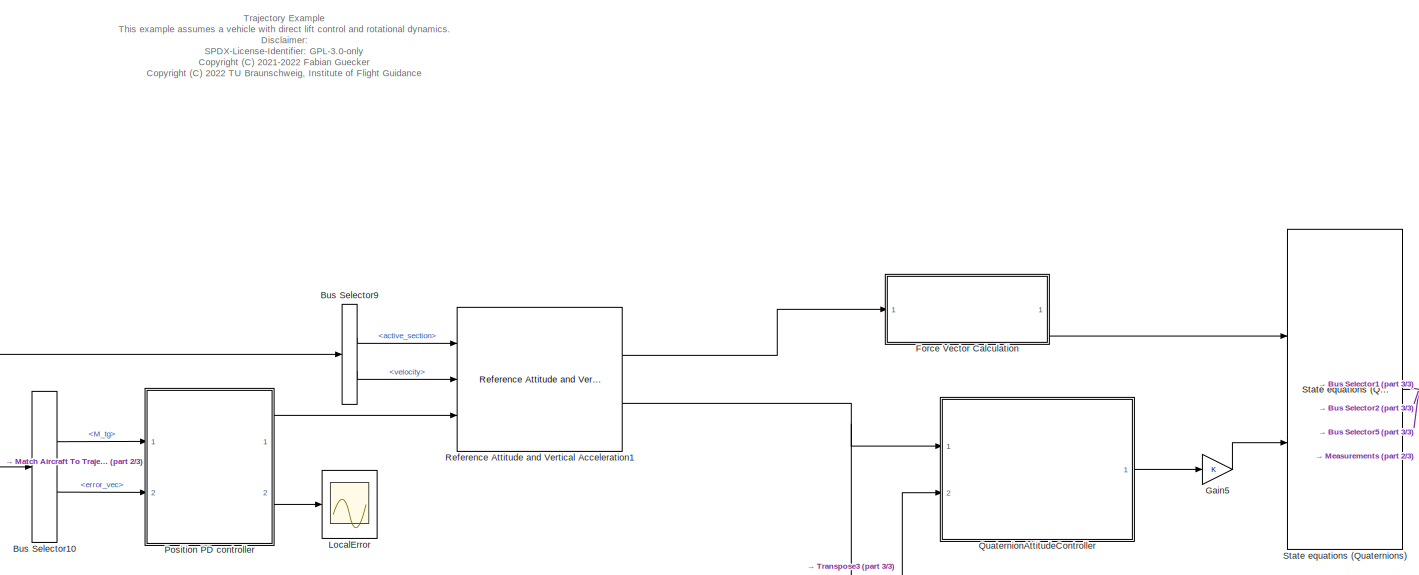
[diagram: root canvas - part 1/3, top center region]
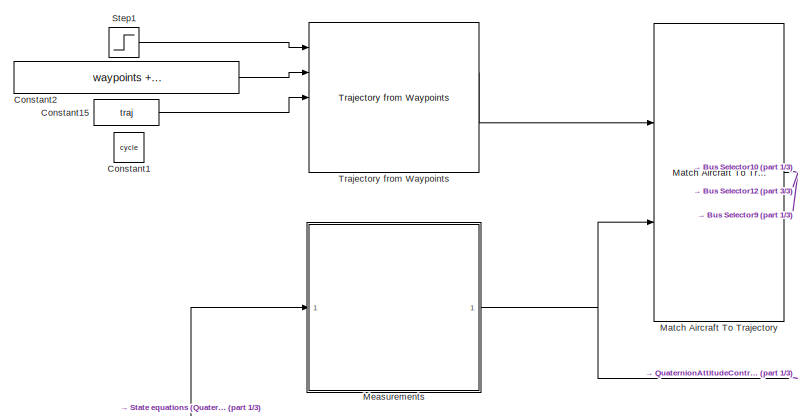
[diagram: root canvas - part 2/3, middle left region]
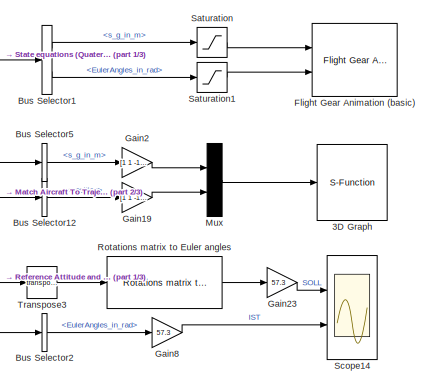
[diagram: root canvas - part 3/3, middle right region]
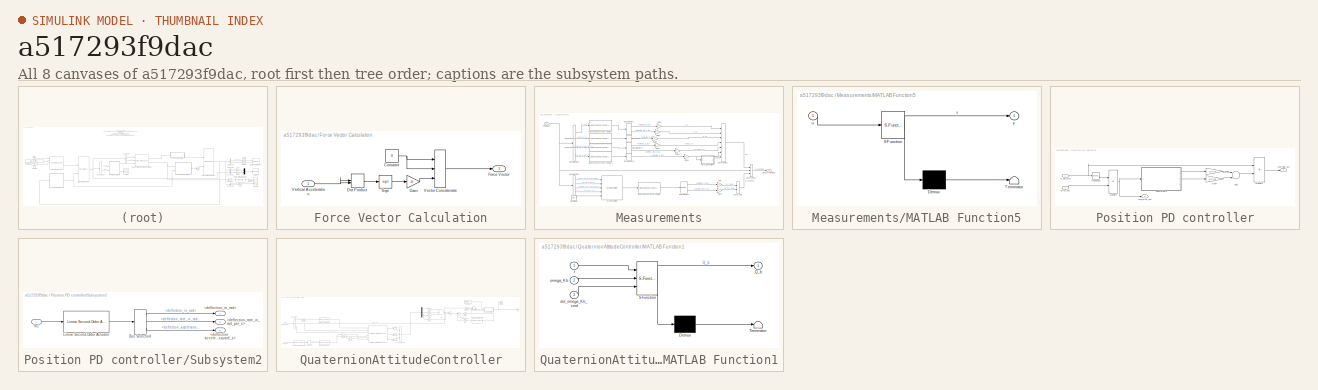
[diagram: thumbnail index - all 8 canvases of the model, root first then tree order]
MODEL slx_a517293f9dac
KIND model
CONFIG AbsTol = auto
CONFIG EnableMultiTasking = off
CONFIG FixedStep = 0.001
CONFIG MaxStep = auto
CONFIG MinStep = auto
CONFIG RelTol = 1e-3
CONFIG SampleTimeConstraint = Unconstrained
CONFIG Solver = ode2
CONFIG SolverName = ode2
CONFIG StartTime = 0.0
CONFIG StopTime = 60
BLOCK [S-Function] 3D Graph
  CopyFcn = if exist('sfun3d','file'), sfun3d([],[],[],'CopyBlock'); end
  DeleteFcn = if exist('sfun3d','file'), sfun3d([],[],[],'DeleteBlock'); end
  EnableBusSupport = off
  FunctionName = sfun3d
  LoadFcn = if exist('sfun3d','file'), sfun3d([],[],[],'LoadBlock'); end
  NameChangeFcn = if exist('sfun3d','file'), sfun3d([],[],[],'NameChange'); end
  Parameters = ax,T,np,cp,gd,ls,mk,mx,hd,tb
  Ports = [1]
  SFcnIsStateOwnerBlock = off
  SFunctionDeploymentMode = off
BLOCK [BusSelector] Bus Selector1
  OutputAsBus = off
  OutputSignals = s_g_in_m,EulerAngles_in_rad
  Ports = [1, 2]
BLOCK [BusSelector] Bus Selector10
  OutputAsBus = off
  OutputSignals = M_tg,error_vec
  Ports = [1, 2]
BLOCK [BusSelector] Bus Selector12
  OutputAsBus = off
  OutputSignals = position
  Ports = [1, 1]
BLOCK [BusSelector] Bus Selector2
  OutputAsBus = off
  OutputSignals = EulerAngles_in_rad
  Ports = [1, 1]
BLOCK [BusSelector] Bus Selector5
  OutputAsBus = off
  OutputSignals = s_g_in_m
  Ports = [1, 1]
BLOCK [BusSelector] Bus Selector9
  OutputAsBus = off
  OutputSignals = active_section,velocity
  Ports = [1, 2]
BLOCK [Constant] Constant1
  OutDataTypeStr = boolean
  Value = cycle
BLOCK [Constant] Constant15
  OutDataTypeStr = Bus: trajectoryBus
  Value = traj
BLOCK [Constant] Constant2
  Value = waypoints + [0 0 0]'
BLOCK [Reference] Flight Gear Animation (basic)  REF=flightgear_visualization_lib/Flight Gear Animation (basic)  (lib defined in slx_722f04e3a3fc)
  Ports = [2]
  SourceBlock = flightgear_visualization_lib/Flight Gear Animation (basic)
  SourceProductName = LADAC
BLOCK [SubSystem] Force Vector Calculation
  Ports = [1, 1]
  RequestExecContextInheritance = off
BLOCK [Constant] Force Vector Calculation/Constant
  Value = 0
BLOCK [DotProduct] Force Vector Calculation/Dot Product
  OutDataTypeStr = Inherit: Inherit via internal rule
BLOCK [Outport] Force Vector Calculation/Force Vector
  IconDisplay = Port number
BLOCK [Gain] Force Vector Calculation/Gain
  Gain = -m
  OutDataTypeStr = Inherit: Inherit via internal rule
  ParamDataTypeStr = Inherit: Inherit via internal rule
  SaturateOnIntegerOverflow = off
BLOCK [Sqrt] Force Vector Calculation/Sqrt
BLOCK [Concatenate] Force Vector Calculation/Vector Concatenate
  NumInputs = 3
  Ports = [3, 1]
BLOCK [Inport] Force Vector Calculation/Vertical Acceleration
  IconDisplay = Port number
BLOCK [Gain] Gain19
  Gain = [1 1 -1]'
  OutDataTypeStr = Inherit: Inherit via internal rule
  ParamDataTypeStr = Inherit: Inherit via internal rule
  SaturateOnIntegerOverflow = off
BLOCK [Gain] Gain2
  Gain = [1 1 -1]'
  OutDataTypeStr = Inherit: Inherit via internal rule
  ParamDataTypeStr = Inherit: Inherit via internal rule
  SaturateOnIntegerOverflow = off
BLOCK [Gain] Gain23
  Gain = 57.3
  OutDataTypeStr = Inherit: Inherit via internal rule
  ParamDataTypeStr = Inherit: Inherit via internal rule
  SaturateOnIntegerOverflow = off
BLOCK [Gain] Gain5
  OutDataTypeStr = Inherit: Inherit via internal rule
  ParamDataTypeStr = Inherit: Inherit via internal rule
  SaturateOnIntegerOverflow = off
BLOCK [Gain] Gain8
  Gain = 57.3
  OutDataTypeStr = Inherit: Inherit via internal rule
  ParamDataTypeStr = Inherit: Inherit via internal rule
  SaturateOnIntegerOverflow = off
BLOCK [Scope] LocalError
  Floating = off
  NumInputPorts = 1
  Ports = [1]
  ScopeSpecificationString = Simulink.scopes.TimeScopeBlockCfg('CurrentConfiguration', extmgr.ConfigurationSet(extmgr.Configuration('Core','General UI',true),extmgr.Configuration('Core','Source UI',true),extmgr.Configuration('Sources','WiredSimulink',true,'DataLoggingVariableName','ScopeData3'),extmgr.Configuration('Visuals','Time Domain',true,'SerializedDisplays',{struct('MinYLimReal','-0.20469','MaxYLimReal','0.25157','YLab...<+1515ch>
BLOCK [Reference] Match Aircraft To Trajectory  REF=traj_lib/Match Aircraft To Trajectory  (lib defined in slx_5b1c91620ded)
  Ports = [2, 1]
  SourceBlock = traj_lib/Match Aircraft To Trajectory
  SourceProductName = LADAC
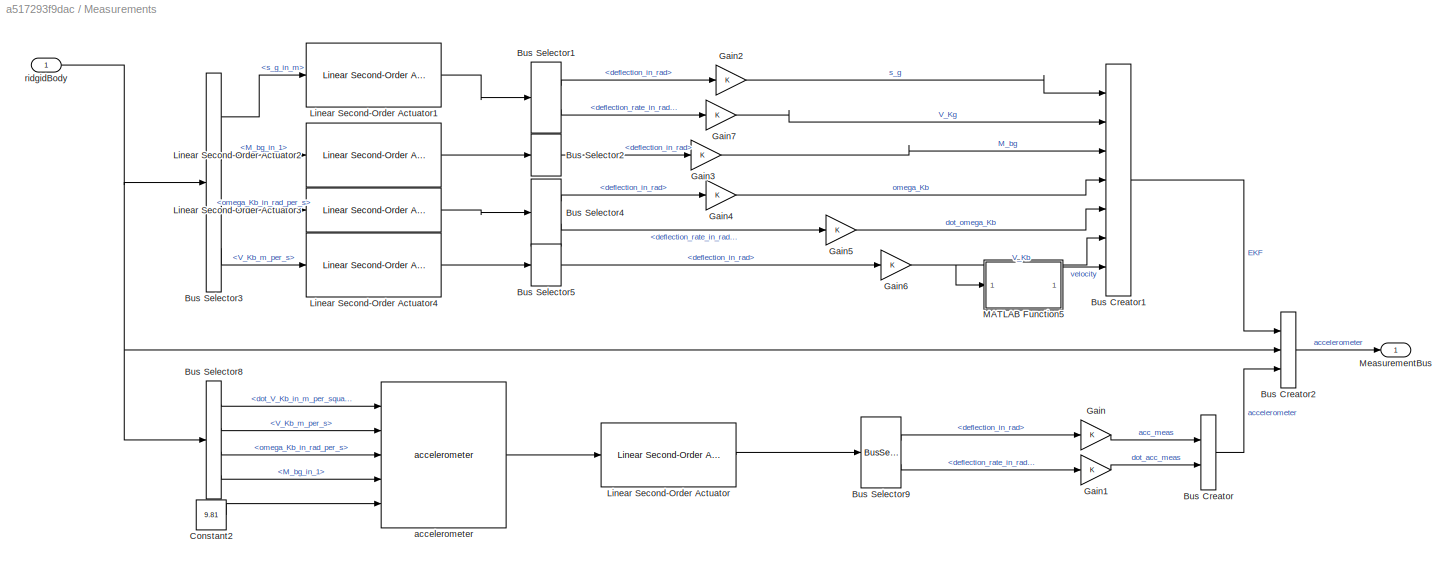
BLOCK [SubSystem] Measurements
  Ports = [1, 1]
  RequestExecContextInheritance = off
BLOCK [BusCreator] Measurements/Bus Creator
  DisplayOption = bar
  InheritFromInputs = on
  Inputs = 2
  Ports = [2, 1]
BLOCK [BusCreator] Measurements/Bus Creator1
  DisplayOption = bar
  InheritFromInputs = on
  Inputs = 7
  Ports = [7, 1]
BLOCK [BusCreator] Measurements/Bus Creator2
  DisplayOption = bar
  InheritFromInputs = on
  Inputs = 3
  Ports = [3, 1]
BLOCK [BusSelector] Measurements/Bus Selector1
  OutputAsBus = off
  OutputSignals = deflection_in_rad,deflection_rate_in_rad_per_s
  Ports = [1, 2]
BLOCK [BusSelector] Measurements/Bus Selector2
  OutputAsBus = off
  OutputSignals = deflection_in_rad
  Ports = [1, 1]
BLOCK [BusSelector] Measurements/Bus Selector3
  OutputAsBus = off
  OutputSignals = s_g_in_m,M_bg_in_1,omega_Kb_in_rad_per_s,V_Kb_m_per_s
  Ports = [1, 4]
BLOCK [BusSelector] Measurements/Bus Selector4
  OutputAsBus = off
  OutputSignals = deflection_in_rad,deflection_rate_in_rad_per_s
  Ports = [1, 2]
BLOCK [BusSelector] Measurements/Bus Selector5
  OutputAsBus = off
  OutputSignals = deflection_in_rad
  Ports = [1, 1]
BLOCK [BusSelector] Measurements/Bus Selector8
  OutputAsBus = off
  OutputSignals = dot_V_Kb_in_m_per_square_s,V_Kb_m_per_s,omega_Kb_in_rad_per_s,M_bg_in_1
  Ports = [1, 4]
BLOCK [BusSelector] Measurements/Bus Selector9
  OutputAsBus = off
  OutputSignals = deflection_in_rad,deflection_rate_in_rad_per_s
  Ports = [1, 2]
BLOCK [Constant] Measurements/Constant2
  Value = 9.81
BLOCK [Gain] Measurements/Gain
  OutDataTypeStr = Inherit: Inherit via internal rule
  ParamDataTypeStr = Inherit: Inherit via internal rule
  SaturateOnIntegerOverflow = off
BLOCK [Gain] Measurements/Gain1
  OutDataTypeStr = Inherit: Inherit via internal rule
  ParamDataTypeStr = Inherit: Inherit via internal rule
  SaturateOnIntegerOverflow = off
BLOCK [Gain] Measurements/Gain2
  OutDataTypeStr = Inherit: Inherit via internal rule
  ParamDataTypeStr = Inherit: Inherit via internal rule
  SaturateOnIntegerOverflow = off
BLOCK [Gain] Measurements/Gain3
  OutDataTypeStr = Inherit: Inherit via internal rule
  ParamDataTypeStr = Inherit: Inherit via internal rule
  SaturateOnIntegerOverflow = off
BLOCK [Gain] Measurements/Gain4
  OutDataTypeStr = Inherit: Inherit via internal rule
  ParamDataTypeStr = Inherit: Inherit via internal rule
  SaturateOnIntegerOverflow = off
BLOCK [Gain] Measurements/Gain5
  OutDataTypeStr = Inherit: Inherit via internal rule
  ParamDataTypeStr = Inherit: Inherit via internal rule
  SaturateOnIntegerOverflow = off
BLOCK [Gain] Measurements/Gain6
  OutDataTypeStr = Inherit: Inherit via internal rule
  ParamDataTypeStr = Inherit: Inherit via internal rule
  SaturateOnIntegerOverflow = off
BLOCK [Gain] Measurements/Gain7
  OutDataTypeStr = Inherit: Inherit via internal rule
  ParamDataTypeStr = Inherit: Inherit via internal rule
  SaturateOnIntegerOverflow = off
BLOCK [Reference] Measurements/Linear Second-Order Actuator  REF=actuators_lib/Linear Second-Order Actuator  (lib defined in slx_c2decc952d1f)
  Ports = [1, 1]
  SourceBlock = actuators_lib/Linear Second-Order Actuator
  SourceProductName = LADAC
BLOCK [Reference] Measurements/Linear Second-Order Actuator1  REF=actuators_lib/Linear Second-Order Actuator  (lib defined in slx_c2decc952d1f)
  Ports = [1, 1]
  SourceBlock = actuators_lib/Linear Second-Order Actuator
  SourceProductName = LADAC
BLOCK [Reference] Measurements/Linear Second-Order Actuator2  REF=actuators_lib/Linear Second-Order Actuator  (lib defined in slx_c2decc952d1f)
  Ports = [1, 1]
  SourceBlock = actuators_lib/Linear Second-Order Actuator
  SourceProductName = LADAC
BLOCK [Reference] Measurements/Linear Second-Order Actuator3  REF=actuators_lib/Linear Second-Order Actuator  (lib defined in slx_c2decc952d1f)
  Ports = [1, 1]
  SourceBlock = actuators_lib/Linear Second-Order Actuator
  SourceProductName = LADAC
BLOCK [Reference] Measurements/Linear Second-Order Actuator4  REF=actuators_lib/Linear Second-Order Actuator  (lib defined in slx_c2decc952d1f)
  Ports = [1, 1]
  SourceBlock = actuators_lib/Linear Second-Order Actuator
  SourceProductName = LADAC
BLOCK [SubSystem] Measurements/MATLAB Function5
  ErrorFcn = Stateflow.Translate.translate
  PermitHierarchicalResolution = ExplicitOnly
  Ports = [1, 1]
  RequestExecContextInheritance = off
  SFBlockType = MATLAB Function
  TreatAsAtomicUnit = on
BLOCK [Demux] Measurements/MATLAB Function5/ Demux 
  Outputs = 1
  Ports = [1, 1]
BLOCK [S-Function] Measurements/MATLAB Function5/ SFunction 
  EnableBusSupport = on
  FunctionName = sf_sfun
  PortCounts = [1 2]
  Ports = [1, 2]
  SFcnIsStateOwnerBlock = off
  SFunctionDeploymentMode = off
  Tag = Stateflow S-Function traj_rigid_body_example 15
BLOCK [Terminator] Measurements/MATLAB Function5/ Terminator 
BLOCK [Inport] Measurements/MATLAB Function5/u
  IconDisplay = Port number
BLOCK [Outport] Measurements/MATLAB Function5/y
  IconDisplay = Port number
BLOCK [Outport] Measurements/MeasurementBus
  IconDisplay = Port number
BLOCK [Reference] Measurements/accelerometer  REF=sensors_lib/accelerometer  (lib defined in mdl_052e9be48c24, mdl_88e42053cf8c, +1 more)
  Ports = [5, 1]
  SourceBlock = sensors_lib/accelerometer
  SourceProductName = LADAC
  SourceType = SubSystem
BLOCK [Inport] Measurements/ridgidBody
  IconDisplay = Port number
BLOCK [Mux] Mux
  DisplayOption = bar
  Inputs = 2
  Ports = [2, 1]
BLOCK [SubSystem] Position PD controller
  Ports = [2, 2]
  RequestExecContextInheritance = off
BLOCK [Sum] Position PD controller/Add1
  InputSameDT = off
  OutDataTypeStr = Inherit: Inherit via internal rule
  Ports = [2, 1]
  SaturateOnIntegerOverflow = off
BLOCK [Gain] Position PD controller/Gain
  Gain = [0 4 4]
  OutDataTypeStr = Inherit: Inherit via internal rule
  ParamDataTypeStr = Inherit: Inherit via internal rule
  SaturateOnIntegerOverflow = off
BLOCK [Gain] Position PD controller/Gain4
  Gain = [0 2 2]
  OutDataTypeStr = Inherit: Inherit via internal rule
  ParamDataTypeStr = Inherit: Inherit via internal rule
  SaturateOnIntegerOverflow = off
BLOCK [Inport] Position PD controller/M_bg_cmd
  IconDisplay = Port number
BLOCK [Product] Position PD controller/Multiply2
  InputSameDT = off
  Multiplication = Matrix(*)
  OutDataTypeStr = Inherit: Inherit via internal rule
  Ports = [2, 1]
  RndMeth = Floor
  SaturateOnIntegerOverflow = off
BLOCK [Product] Position PD controller/Multiply3
  InputSameDT = off
  Multiplication = Matrix(*)
  OutDataTypeStr = Inherit: Inherit via internal rule
  Ports = [2, 1]
  RndMeth = Floor
  SaturateOnIntegerOverflow = off
BLOCK [SubSystem] Position PD controller/Subsystem2
  Ports = [1, 3]
  RequestExecContextInheritance = off
BLOCK [Outport] Position PD controller/Subsystem2/<deflection_acceleration_in_rad_per_square_s>
  IconDisplay = Port number
  Port = 3
BLOCK [Outport] Position PD controller/Subsystem2/<deflection_in_rad>
  IconDisplay = Port number
BLOCK [Outport] Position PD controller/Subsystem2/<deflection_rate_in_rad_per_s>
  IconDisplay = Port number
  Port = 2
BLOCK [BusSelector] Position PD controller/Subsystem2/Bus Selector4
  OutputAsBus = off
  OutputSignals = deflection_in_rad,deflection_rate_in_rad_per_s,deflection_acceleration_in_rad_per_square_s
  Ports = [1, 3]
BLOCK [Inport] Position PD controller/Subsystem2/In1
  IconDisplay = Port number
BLOCK [Reference] Position PD controller/Subsystem2/Linear Second-Order Actuator  REF=actuators_lib/Linear Second-Order Actuator  (lib defined in slx_c2decc952d1f)
  Ports = [1, 1]
  SourceBlock = actuators_lib/Linear Second-Order Actuator
  SourceProductName = LADAC
BLOCK [Math] Position PD controller/Transpose
  Operator = transpose
  Ports = [1, 1]
BLOCK [Outport] Position PD controller/controller_acc
  IconDisplay = Port number
BLOCK [Inport] Position PD controller/error_vec
  IconDisplay = Port number
  Port = 2
BLOCK [Outport] Position PD controller/local_error_vec
  IconDisplay = Port number
  Port = 2
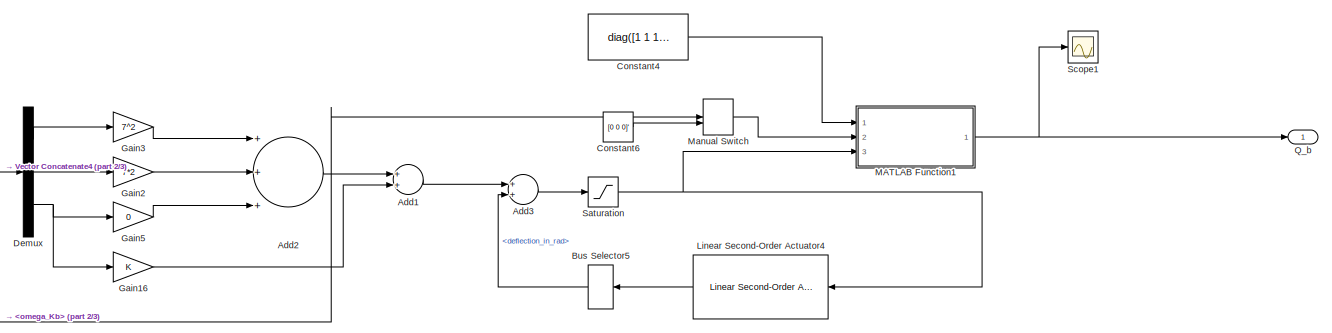
[diagram: QuaternionAttitudeController - part 1/3, top right region]
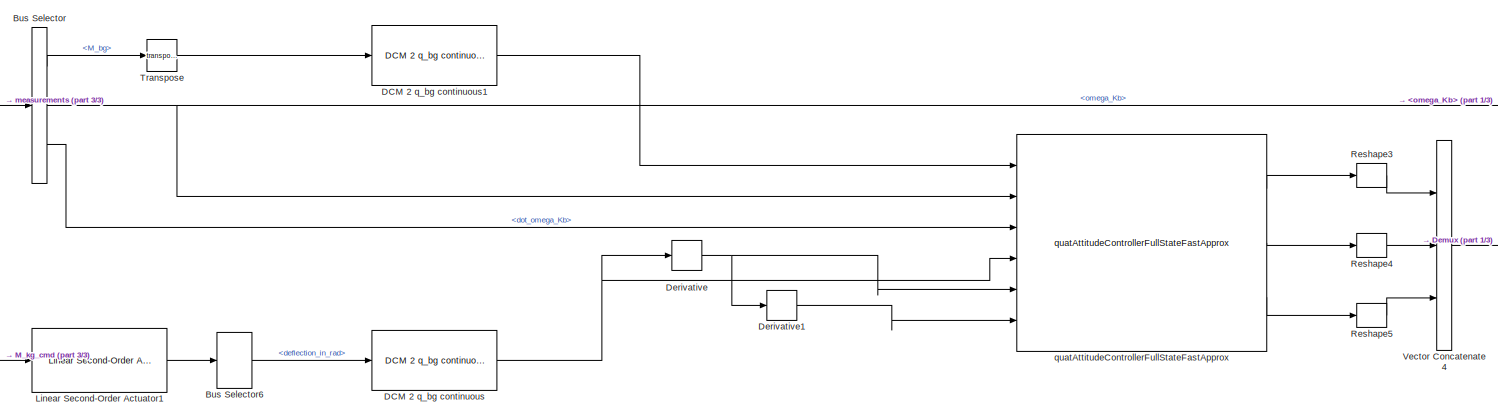
[diagram: QuaternionAttitudeController - part 2/3, bottom left region]
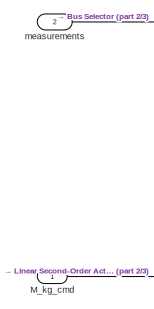
[diagram: QuaternionAttitudeController - part 3/3, bottom left region]
BLOCK [SubSystem] QuaternionAttitudeController
  Ports = [2, 1]
  RequestExecContextInheritance = off
BLOCK [Sum] QuaternionAttitudeController/Add1
  InputSameDT = off
  OutDataTypeStr = Inherit: Inherit via internal rule
  Ports = [2, 1]
  SaturateOnIntegerOverflow = off
BLOCK [Sum] QuaternionAttitudeController/Add2
  InputSameDT = off
  Inputs = +++
  OutDataTypeStr = Inherit: Inherit via internal rule
  Ports = [3, 1]
  SaturateOnIntegerOverflow = off
BLOCK [Sum] QuaternionAttitudeController/Add3
  InputSameDT = off
  OutDataTypeStr = Inherit: Inherit via internal rule
  Ports = [2, 1]
  SaturateOnIntegerOverflow = off
BLOCK [BusSelector] QuaternionAttitudeController/Bus Selector
  OutputAsBus = off
  OutputSignals = EKF.M_bg,EKF.omega_Kb,EKF.dot_omega_Kb
  Ports = [1, 3]
BLOCK [BusSelector] QuaternionAttitudeController/Bus Selector5
  OutputAsBus = off
  OutputSignals = deflection_in_rad
  Ports = [1, 1]
BLOCK [BusSelector] QuaternionAttitudeController/Bus Selector6
  OutputAsBus = off
  OutputSignals = deflection_in_rad
  Ports = [1, 1]
BLOCK [Constant] QuaternionAttitudeController/Constant4
  Value = diag([1 1 1])
  VectorParams1D = off
BLOCK [Constant] QuaternionAttitudeController/Constant6
  Value = [0 0 0]'
  VectorParams1D = off
BLOCK [Reference] QuaternionAttitudeController/DCM 2 q_bg continuous  REF=axes_transformation_lib/DCM 2 q_bg continuous  (lib defined in slx_69e2413c78c0)
  Ports = [1, 1]
  SourceBlock = axes_transformation_lib/DCM 2 q_bg continuous
  SourceProductName = LADAC
BLOCK [Reference] QuaternionAttitudeController/DCM 2 q_bg continuous1  REF=axes_transformation_lib/DCM 2 q_bg continuous  (lib defined in slx_69e2413c78c0)
  Ports = [1, 1]
  SourceBlock = axes_transformation_lib/DCM 2 q_bg continuous
  SourceProductName = LADAC
BLOCK [Demux] QuaternionAttitudeController/Demux
  DisplayOption = bar
  Outputs = 3
  Ports = [1, 3]
BLOCK [Derivative] QuaternionAttitudeController/Derivative
BLOCK [Derivative] QuaternionAttitudeController/Derivative1
BLOCK [Gain] QuaternionAttitudeController/Gain16
  OutDataTypeStr = Inherit: Inherit via internal rule
  ParamDataTypeStr = Inherit: Inherit via internal rule
  SaturateOnIntegerOverflow = off
BLOCK [Gain] QuaternionAttitudeController/Gain2
  Gain = 7*2
  OutDataTypeStr = Inherit: Inherit via internal rule
  ParamDataTypeStr = Inherit: Inherit via internal rule
  SaturateOnIntegerOverflow = off
BLOCK [Gain] QuaternionAttitudeController/Gain3
  Gain = 7^2
  OutDataTypeStr = Inherit: Inherit via internal rule
  ParamDataTypeStr = Inherit: Inherit via internal rule
  SaturateOnIntegerOverflow = off
BLOCK [Gain] QuaternionAttitudeController/Gain5
  Gain = 0
  OutDataTypeStr = Inherit: Inherit via internal rule
  ParamDataTypeStr = Inherit: Inherit via internal rule
  SaturateOnIntegerOverflow = off
BLOCK [Reference] QuaternionAttitudeController/Linear Second-Order Actuator1  REF=actuators_lib/Linear Second-Order Actuator  (lib defined in slx_c2decc952d1f)
  Ports = [1, 1]
  SourceBlock = actuators_lib/Linear Second-Order Actuator
  SourceProductName = LADAC
BLOCK [Reference] QuaternionAttitudeController/Linear Second-Order Actuator4  REF=actuators_lib/Linear Second-Order Actuator  (lib defined in slx_c2decc952d1f)
  Ports = [1, 1]
  SourceBlock = actuators_lib/Linear Second-Order Actuator
  SourceProductName = LADAC
BLOCK [SubSystem] QuaternionAttitudeController/MATLAB Function1
  ErrorFcn = Stateflow.Translate.translate
  PermitHierarchicalResolution = ExplicitOnly
  Ports = [3, 1]
  RequestExecContextInheritance = off
  SFBlockType = MATLAB Function
  TreatAsAtomicUnit = on
BLOCK [Demux] QuaternionAttitudeController/MATLAB Function1/ Demux 
  Outputs = 1
  Ports = [1, 1]
BLOCK [S-Function] QuaternionAttitudeController/MATLAB Function1/ SFunction 
  EnableBusSupport = on
  FunctionName = sf_sfun
  PortCounts = [3 2]
  Ports = [3, 2]
  SFcnIsStateOwnerBlock = off
  SFunctionDeploymentMode = off
  Tag = Stateflow S-Function traj_rigid_body_example 34
BLOCK [Terminator] QuaternionAttitudeController/MATLAB Function1/ Terminator 
BLOCK [Inport] QuaternionAttitudeController/MATLAB Function1/I
  IconDisplay = Port number
BLOCK [Outport] QuaternionAttitudeController/MATLAB Function1/Q_b
  IconDisplay = Port number
BLOCK [Inport] QuaternionAttitudeController/MATLAB Function1/dot_omega_Kb_cmd
  IconDisplay = Port number
  Port = 3
BLOCK [Inport] QuaternionAttitudeController/MATLAB Function1/omega_Kb
  IconDisplay = Port number
  Port = 2
BLOCK [Inport] QuaternionAttitudeController/M_kg_cmd
  IconDisplay = Port number
BLOCK [ManualSwitch] QuaternionAttitudeController/Manual Switch
BLOCK [Outport] QuaternionAttitudeController/Q_b
  IconDisplay = Port number
BLOCK [Reshape] QuaternionAttitudeController/Reshape3
  OutputDimensionality = Column vector (2-D)
  Ports = [1, 1]
BLOCK [Reshape] QuaternionAttitudeController/Reshape4
  OutputDimensionality = Column vector (2-D)
  Ports = [1, 1]
BLOCK [Reshape] QuaternionAttitudeController/Reshape5
  OutputDimensionality = Column vector (2-D)
  Ports = [1, 1]
BLOCK [Saturate] QuaternionAttitudeController/Saturation
  InputPortMap = u0
  LowerLimit = -10
  Ports = [1, 1]
  UpperLimit = 10
BLOCK [Scope] QuaternionAttitudeController/Scope1
  Floating = off
  NumInputPorts = 1
  Ports = [1]
  ScopeSpecificationString = Simulink.scopes.TimeScopeBlockCfg('CurrentConfiguration', extmgr.ConfigurationSet(extmgr.Configuration('Core','General UI',true),extmgr.Configuration('Core','Source UI',true),extmgr.Configuration('Sources','WiredSimulink',true,'DataLoggingVariableName','ScopeData1'),extmgr.Configuration('Visuals','Time Domain',true,'SerializedDisplays',{struct('MinYLimReal','-12.5','MaxYLimReal','10.76376','YLabel...<+1462ch>
BLOCK [Math] QuaternionAttitudeController/Transpose
  Operator = transpose
  Ports = [1, 1]
BLOCK [Concatenate] QuaternionAttitudeController/Vector Concatenate4
  NumInputs = 3
  Ports = [3, 1]
BLOCK [Inport] QuaternionAttitudeController/measurements
  IconDisplay = Port number
  Port = 2
BLOCK [Reference] QuaternionAttitudeController/quatAttitudeControllerFullStateFastApprox  REF=quatAttitudeController_lib/quatAttitudeControllerFullStateFastApprox
  Ports = [6, 3]
  SourceBlock = quatAttitudeController_lib/quatAttitudeControllerFullStateFastApprox
  SourceProductName = LADAC
  SourceType = SubSystem
BLOCK [Reference] Reference Attitude and Vertical Acceleration1  REF=traj_lib/Reference Attitude and Vertical Acceleration  (lib defined in slx_5b1c91620ded)
  Ports = [3, 2]
  SourceBlock = traj_lib/Reference Attitude and Vertical Acceleration
  SourceProductName = LADAC
BLOCK [Reference] Rotations matrix to Euler angles  REF=axes_transformation_lib/Rotations matrix to Euler angles  (lib defined in slx_69e2413c78c0)
  Ports = [1, 1]
  SourceBlock = axes_transformation_lib/Rotations matrix to Euler angles
  SourceProductName = LADAC
  SourceType = SubSystem
BLOCK [Saturate] Saturation
  InputPortMap = u0
  LowerLimit = -5000
  Ports = [1, 1]
  UpperLimit = 5000
BLOCK [Saturate] Saturation1
  InputPortMap = u0
  LowerLimit = -100*pi
  Ports = [1, 1]
  UpperLimit = 100*pi
BLOCK [Scope] Scope14
  Floating = off
  NumInputPorts = 2
  Ports = [2]
  ScopeSpecificationString = Simulink.scopes.TimeScopeBlockCfg('CurrentConfiguration', extmgr.ConfigurationSet(extmgr.Configuration('Core','General UI',true),extmgr.Configuration('Core','Source UI',true),extmgr.Configuration('Sources','WiredSimulink',true,'DataLoggingVariableName','ScopeData2'),extmgr.Configuration('Visuals','Time Domain',true,'SerializedDisplays',{struct('MinYLimReal','-34.28818','MaxYLimReal','124.23051','Y...<+1695ch>
BLOCK [Reference] State equations (Quaternions)  REF=rigidBody_lib/State equations
(Quaternions)
  Ports = [2, 1]
  SourceBlock = rigidBody_lib/State equations\n(Quaternions)
  SourceProductName = LADAC
BLOCK [Step] Step1
  SampleTime = 0
  Time = 0
BLOCK [Reference] Trajectory from Waypoints  REF=traj_lib/Trajectory from Waypoints  (lib defined in slx_5b1c91620ded)
  Ports = [5, 2]
  SourceBlock = traj_lib/Trajectory from Waypoints
  SourceProductName = LADAC
BLOCK [Math] Transpose3
  Operator = transpose
  Ports = [1, 1]
ANNOTATION (root): Trajectory Example This example assumes a vehicle with direct lift control and rotational dynamics. Disclaimer: SPDX-License-Identifier: GPL-3.0-only <copyright redacted>
LINE Bus Selector10:1 -> Position PD controller:1
LINE Bus Selector10:2 -> Position PD controller:2
LINE Bus Selector12:1 -> Gain19:1
LINE Bus Selector1:1 -> Saturation:1
LINE Bus Selector1:2 -> Saturation1:1
LINE Bus Selector2:1 -> Gain8:1
LINE Bus Selector5:1 -> Gain2:1
LINE Bus Selector9:1 -> Reference Attitude and Vertical Acceleration1:1
LINE Bus Selector9:2 -> Reference Attitude and Vertical Acceleration1:2
LINE Constant15:1 -> Trajectory from Waypoints:3
LINE Constant2:1 -> Trajectory from Waypoints:2
NET Force Vector Calculation/Constant:1 -> Force Vector Calculation/Vector Concatenate:1, Force Vector Calculation/Vector Concatenate:2
LINE Force Vector Calculation/Dot Product:1 -> Force Vector Calculation/Sqrt:1
LINE Force Vector Calculation/Gain:1 -> Force Vector Calculation/Vector Concatenate:3
LINE Force Vector Calculation/Sqrt:1 -> Force Vector Calculation/Gain:1
LINE Force Vector Calculation/Vector Concatenate:1 -> Force Vector Calculation/Force Vector:1
NET Force Vector Calculation/Vertical Acceleration:1 -> Force Vector Calculation/Dot Product:1, Force Vector Calculation/Dot Product:2
LINE Force Vector Calculation:1 -> State equations (Quaternions):1
LINE Gain19:1 -> Mux:2
LINE Gain23:1 -> Scope14:1
LINE Gain2:1 -> Mux:1
LINE Gain5:1 -> State equations (Quaternions):2
LINE Gain8:1 -> Scope14:2
NET Match Aircraft To Trajectory:1 -> Bus Selector10:1, Bus Selector12:1, Bus Selector9:1
LINE Measurements/Bus Creator1:1 -> Measurements/Bus Creator2:1
LINE Measurements/Bus Creator2:1 -> Measurements/MeasurementBus:1
LINE Measurements/Bus Creator:1 -> Measurements/Bus Creator2:3
LINE Measurements/Bus Selector1:1 -> Measurements/Gain2:1
LINE Measurements/Bus Selector1:2 -> Measurements/Gain7:1
LINE Measurements/Bus Selector2:1 -> Measurements/Gain3:1
LINE Measurements/Bus Selector3:1 -> Measurements/Linear Second-Order Actuator1:1
LINE Measurements/Bus Selector3:2 -> Measurements/Linear Second-Order Actuator2:1
LINE Measurements/Bus Selector3:3 -> Measurements/Linear Second-Order Actuator3:1
LINE Measurements/Bus Selector3:4 -> Measurements/Linear Second-Order Actuator4:1
LINE Measurements/Bus Selector4:1 -> Measurements/Gain4:1
LINE Measurements/Bus Selector4:2 -> Measurements/Gain5:1
LINE Measurements/Bus Selector5:1 -> Measurements/Gain6:1
LINE Measurements/Bus Selector8:1 -> Measurements/accelerometer:1
LINE Measurements/Bus Selector8:2 -> Measurements/accelerometer:2
LINE Measurements/Bus Selector8:3 -> Measurements/accelerometer:3
LINE Measurements/Bus Selector8:4 -> Measurements/accelerometer:4
LINE Measurements/Bus Selector9:1 -> Measurements/Gain:1
LINE Measurements/Bus Selector9:2 -> Measurements/Gain1:1
LINE Measurements/Constant2:1 -> Measurements/accelerometer:5
LINE Measurements/Gain1:1 -> Measurements/Bus Creator:2
LINE Measurements/Gain2:1 -> Measurements/Bus Creator1:1
LINE Measurements/Gain3:1 -> Measurements/Bus Creator1:3
LINE Measurements/Gain4:1 -> Measurements/Bus Creator1:4
LINE Measurements/Gain5:1 -> Measurements/Bus Creator1:5
NET Measurements/Gain6:1 -> Measurements/Bus Creator1:6, Measurements/MATLAB Function5:1
LINE Measurements/Gain7:1 -> Measurements/Bus Creator1:2
LINE Measurements/Gain:1 -> Measurements/Bus Creator:1
LINE Measurements/Linear Second-Order Actuator1:1 -> Measurements/Bus Selector1:1
LINE Measurements/Linear Second-Order Actuator2:1 -> Measurements/Bus Selector2:1
LINE Measurements/Linear Second-Order Actuator3:1 -> Measurements/Bus Selector4:1
LINE Measurements/Linear Second-Order Actuator4:1 -> Measurements/Bus Selector5:1
LINE Measurements/Linear Second-Order Actuator:1 -> Measurements/Bus Selector9:1
LINE Measurements/MATLAB Function5:1 -> Measurements/Bus Creator1:7
LINE Measurements/accelerometer:1 -> Measurements/Linear Second-Order Actuator:1
NET Measurements/ridgidBody:1 -> Measurements/Bus Creator2:2, Measurements/Bus Selector3:1, Measurements/Bus Selector8:1
NET Measurements:1 -> Match Aircraft To Trajectory:2, QuaternionAttitudeController:2
LINE Mux:1 -> 3D Graph:1
LINE Position PD controller/Add1:1 -> Position PD controller/Multiply3:2
LINE Position PD controller/Gain4:1 -> Position PD controller/Add1:2
LINE Position PD controller/Gain:1 -> Position PD controller/Add1:1
NET Position PD controller/M_bg_cmd:1 -> Position PD controller/Multiply3:1, Position PD controller/Transpose:1
NET Position PD controller/Multiply2:1 -> Position PD controller/Subsystem2:1, Position PD controller/local_error_vec:1
LINE Position PD controller/Multiply3:1 -> Position PD controller/controller_acc:1
LINE Position PD controller/Subsystem2/Bus Selector4:1 -> Position PD controller/Subsystem2/<deflection_in_rad>:1
LINE Position PD controller/Subsystem2/Bus Selector4:2 -> Position PD controller/Subsystem2/<deflection_rate_in_rad_per_s>:1
LINE Position PD controller/Subsystem2/Bus Selector4:3 -> Position PD controller/Subsystem2/<deflection_acceleration_in_rad_per_square_s>:1
LINE Position PD controller/Subsystem2/In1:1 -> Position PD controller/Subsystem2/Linear Second-Order Actuator:1
LINE Position PD controller/Subsystem2/Linear Second-Order Actuator:1 -> Position PD controller/Subsystem2/Bus Selector4:1
LINE Position PD controller/Subsystem2:1 -> Position PD controller/Gain:1
LINE Position PD controller/Subsystem2:2 -> Position PD controller/Gain4:1
LINE Position PD controller/Transpose:1 -> Position PD controller/Multiply2:1
LINE Position PD controller/error_vec:1 -> Position PD controller/Multiply2:2
LINE Position PD controller:1 -> Reference Attitude and Vertical Acceleration1:3
LINE Position PD controller:2 -> LocalError:1
LINE QuaternionAttitudeController/Add1:1 -> QuaternionAttitudeController/Add3:1
LINE QuaternionAttitudeController/Add2:1 -> QuaternionAttitudeController/Add1:1
LINE QuaternionAttitudeController/Add3:1 -> QuaternionAttitudeController/Saturation:1
LINE QuaternionAttitudeController/Bus Selector5:1 -> QuaternionAttitudeController/Add3:2
LINE QuaternionAttitudeController/Bus Selector6:1 -> QuaternionAttitudeController/DCM 2 q_bg continuous:1
LINE QuaternionAttitudeController/Bus Selector:1 -> QuaternionAttitudeController/Transpose:1
NET QuaternionAttitudeController/Bus Selector:2 -> QuaternionAttitudeController/Manual Switch:1, QuaternionAttitudeController/quatAttitudeControllerFullStateFastApprox:2
LINE QuaternionAttitudeController/Bus Selector:3 -> QuaternionAttitudeController/quatAttitudeControllerFullStateFastApprox:3
LINE QuaternionAttitudeController/Constant4:1 -> QuaternionAttitudeController/MATLAB Function1:1
LINE QuaternionAttitudeController/Constant6:1 -> QuaternionAttitudeController/Manual Switch:2
LINE QuaternionAttitudeController/DCM 2 q_bg continuous1:1 -> QuaternionAttitudeController/quatAttitudeControllerFullStateFastApprox:1
NET QuaternionAttitudeController/DCM 2 q_bg continuous:1 -> QuaternionAttitudeController/Derivative:1, QuaternionAttitudeController/quatAttitudeControllerFullStateFastApprox:4
LINE QuaternionAttitudeController/Demux:1 -> QuaternionAttitudeController/Gain3:1
LINE QuaternionAttitudeController/Demux:2 -> QuaternionAttitudeController/Gain2:1
NET QuaternionAttitudeController/Demux:3 -> QuaternionAttitudeController/Gain16:1, QuaternionAttitudeController/Gain5:1
LINE QuaternionAttitudeController/Derivative1:1 -> QuaternionAttitudeController/quatAttitudeControllerFullStateFastApprox:6
NET QuaternionAttitudeController/Derivative:1 -> QuaternionAttitudeController/Derivative1:1, QuaternionAttitudeController/quatAttitudeControllerFullStateFastApprox:5
LINE QuaternionAttitudeController/Gain16:1 -> QuaternionAttitudeController/Add1:2
LINE QuaternionAttitudeController/Gain2:1 -> QuaternionAttitudeController/Add2:2
LINE QuaternionAttitudeController/Gain3:1 -> QuaternionAttitudeController/Add2:1
LINE QuaternionAttitudeController/Gain5:1 -> QuaternionAttitudeController/Add2:3
LINE QuaternionAttitudeController/Linear Second-Order Actuator1:1 -> QuaternionAttitudeController/Bus Selector6:1
LINE QuaternionAttitudeController/Linear Second-Order Actuator4:1 -> QuaternionAttitudeController/Bus Selector5:1
NET QuaternionAttitudeController/MATLAB Function1:1 -> QuaternionAttitudeController/Q_b:1, QuaternionAttitudeController/Scope1:1
LINE QuaternionAttitudeController/M_kg_cmd:1 -> QuaternionAttitudeController/Linear Second-Order Actuator1:1
LINE QuaternionAttitudeController/Manual Switch:1 -> QuaternionAttitudeController/MATLAB Function1:2
LINE QuaternionAttitudeController/Reshape3:1 -> QuaternionAttitudeController/Vector Concatenate4:1
LINE QuaternionAttitudeController/Reshape4:1 -> QuaternionAttitudeController/Vector Concatenate4:2
LINE QuaternionAttitudeController/Reshape5:1 -> QuaternionAttitudeController/Vector Concatenate4:3
NET QuaternionAttitudeController/Saturation:1 -> QuaternionAttitudeController/Linear Second-Order Actuator4:1, QuaternionAttitudeController/MATLAB Function1:3
LINE QuaternionAttitudeController/Transpose:1 -> QuaternionAttitudeController/DCM 2 q_bg continuous1:1
LINE QuaternionAttitudeController/Vector Concatenate4:1 -> QuaternionAttitudeController/Demux:1
LINE QuaternionAttitudeController/measurements:1 -> QuaternionAttitudeController/Bus Selector:1
LINE QuaternionAttitudeController/quatAttitudeControllerFullStateFastApprox:1 -> QuaternionAttitudeController/Reshape3:1
LINE QuaternionAttitudeController/quatAttitudeControllerFullStateFastApprox:2 -> QuaternionAttitudeController/Reshape4:1
LINE QuaternionAttitudeController/quatAttitudeControllerFullStateFastApprox:3 -> QuaternionAttitudeController/Reshape5:1
LINE QuaternionAttitudeController:1 -> Gain5:1
LINE Reference Attitude and Vertical Acceleration1:1 -> Force Vector Calculation:1
NET Reference Attitude and Vertical Acceleration1:2 -> QuaternionAttitudeController:1, Transpose3:1
LINE Rotations matrix to Euler angles:1 -> Gain23:1
LINE Saturation1:1 -> Flight Gear Animation (basic):2
LINE Saturation:1 -> Flight Gear Animation (basic):1
NET State equations (Quaternions):1 -> Bus Selector1:1, Bus Selector2:1, Bus Selector5:1, Measurements:1
LINE Step1:1 -> Trajectory from Waypoints:1
LINE Trajectory from Waypoints:1 -> Match Aircraft To Trajectory:1
LINE Transpose3:1 -> Rotations matrix to Euler angles:1
note: NET lines group one-source signal fan-out (src -> all destinations, sorted); 1:1 wires keep LINE
CHART Measurements/MATLAB Function5 states=1 transitions=1
  STATE_LABEL 'eML_blk_kernel()'
  STATE_LABEL 'SCRIPT:\nfunction y = fcn(u)\n\ny = norm(u);\n'
CHART QuaternionAttitudeController/MATLAB Function1 states=1 transitions=1
  STATE_LABEL 'eML_blk_kernel()'
  STATE_LABEL 'SCRIPT:\nfunction Q_b = fcn(I,omega_Kb,dot_omega_Kb_cmd)\n\nQ_b = I * dot_omega_Kb_cmd + cross( omega_Kb, I * omega_Kb );\n\nend\n\n'
